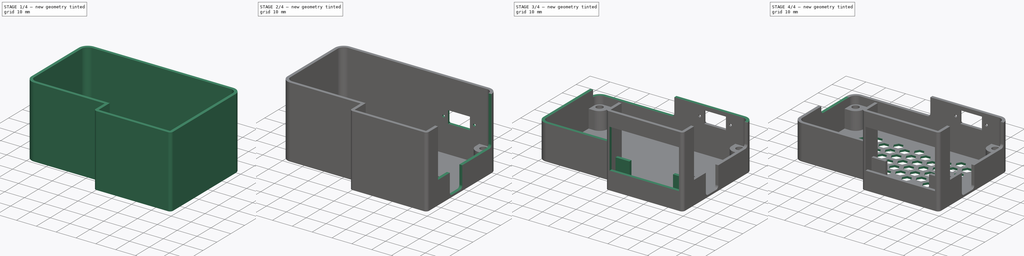
[diagram: build sequence overview — one tinted view per stage of 4, left to right]
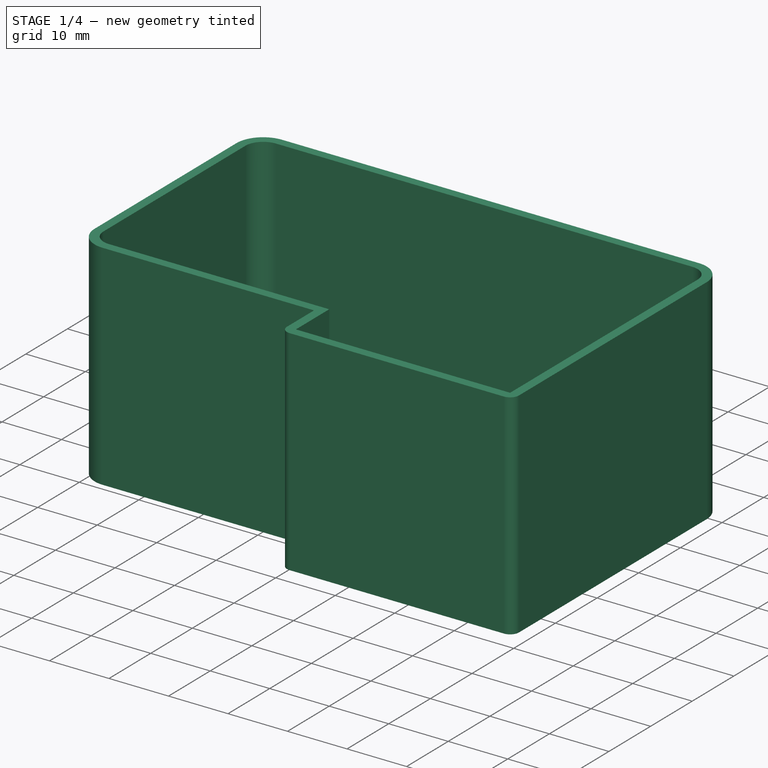
[diagram: stage 1 of 4 — iso view after this stage's code; geometry added in this stage tinted green]
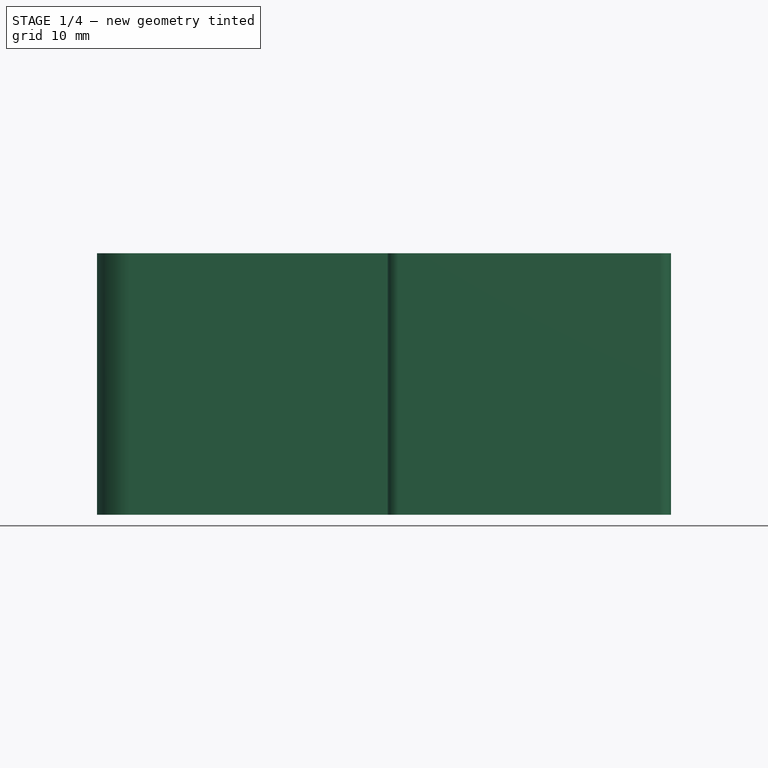
[diagram: stage 1 of 4 — front view after this stage's code; geometry added in this stage tinted green]
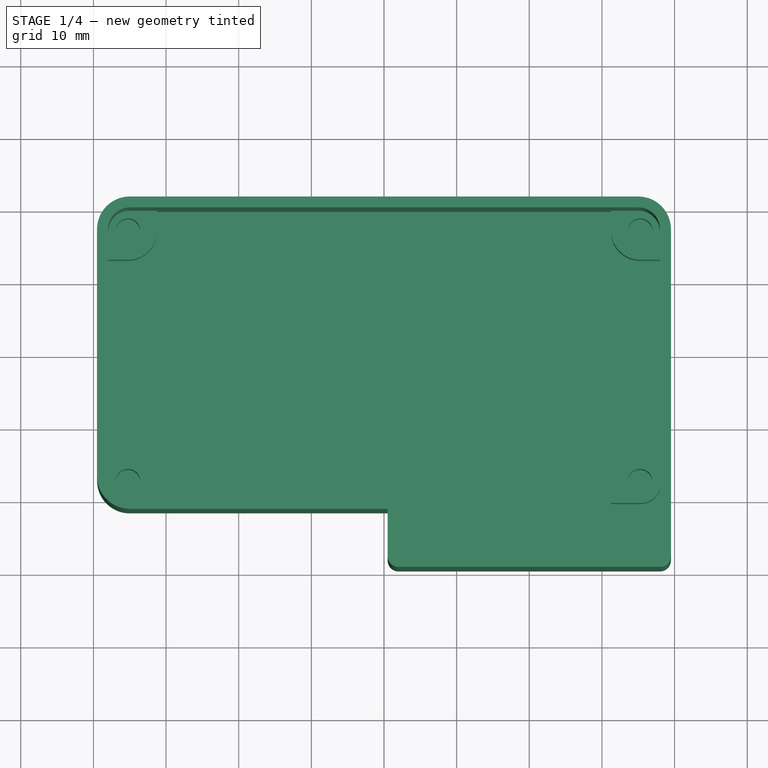
[diagram: stage 1 of 4 — top view after this stage's code; geometry added in this stage tinted green]
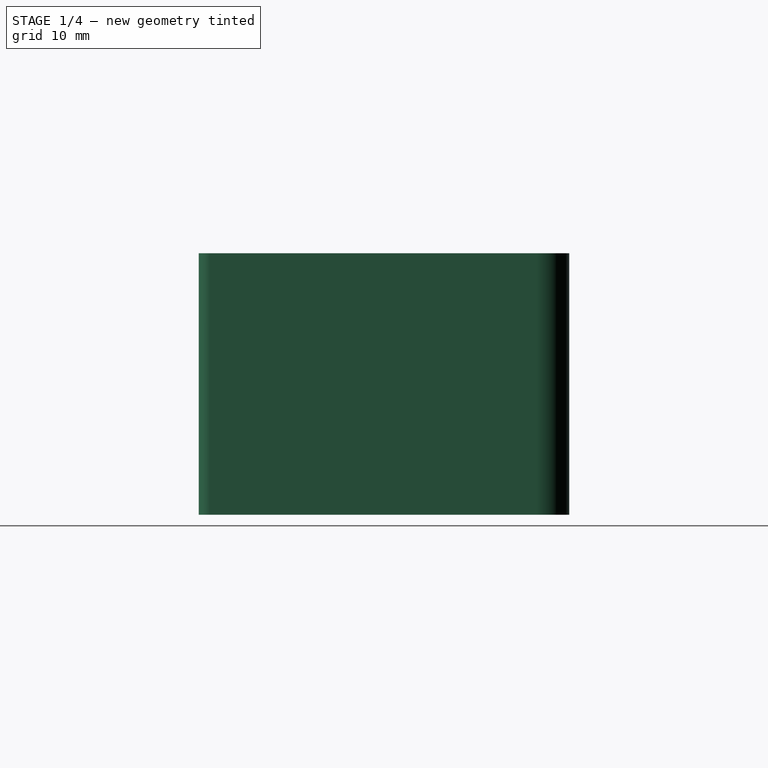
[diagram: stage 1 of 4 — right view after this stage's code; geometry added in this stage tinted green]
FCSTD DOCUMENT  (FreeCAD 0.20R29410 (Git))
Label: Pro-V1
License: All rights reserved
LicenseURL: http://en.wikipedia.org/wiki/All_rights_reserved
objects: Sketcher::SketchObject×12, PartDesign::Pocket×9, PartDesign::Pad×3, PartDesign::LinearPattern×2, PartDesign::MultiTransform×1, PartDesign::Body×1
note: 40 computed .brp shape members not serialized (recipe doc carries the construction recipe); baked Part::Feature solids carry a one-line shape summary decoded from their .brp

FEATURE [Sketcher::SketchObject] Sketch
  FullyConstrained = true
  MapMode = 5
  Support = -> [XY_Plane]
  sketch-geometry (21):
    g0: LineSegment StartX=-35 StartY=20 StartZ=0 EndX=35 EndY=20 EndZ=0
    g1: LineSegment StartX=38 StartY=17 StartZ=0 EndX=38 EndY=-17 EndZ=0
    g2: LineSegment StartX=35 StartY=-20 StartZ=0 EndX=-35 EndY=-20 EndZ=0
    g3: LineSegment StartX=-38 StartY=-17 StartZ=0 EndX=-38 EndY=17 EndZ=0
    g4: ArcOfCircle CenterX=-35 CenterY=17 CenterZ=0 NormalX=0 NormalY=0 NormalZ=1 AngleXU=0 Radius=3 StartAngle=1.5708 EndAngle=3.14159
    g5: ArcOfCircle CenterX=35 CenterY=17 CenterZ=0 NormalX=0 NormalY=0 NormalZ=1 AngleXU=0 Radius=3 StartAngle=0 EndAngle=1.5708
    g6: ArcOfCircle CenterX=35 CenterY=-17 CenterZ=0 NormalX=0 NormalY=0 NormalZ=1 AngleXU=0 Radius=3 StartAngle=4.71239 EndAngle=6.28319
    g7: ArcOfCircle CenterX=-35 CenterY=-17 CenterZ=0 NormalX=0 NormalY=0 NormalZ=1 AngleXU=0 Radius=3 StartAngle=3.14159 EndAngle=4.71239
    g8: LineSegment StartX=-35 StartY=21.5 StartZ=0 EndX=35 EndY=21.5 EndZ=0
    g9: LineSegment StartX=39.5 StartY=17 StartZ=0 EndX=39.5 EndY=-28 EndZ=0
    g10: LineSegment StartX=0.5 StartY=-21.5 StartZ=0 EndX=-35 EndY=-21.5 EndZ=0
    g11: LineSegment StartX=-39.5 StartY=-17 StartZ=0 EndX=-39.5 EndY=17 EndZ=0
    g12: ArcOfCircle CenterX=-35 CenterY=17 CenterZ=0 NormalX=0 NormalY=0 NormalZ=1 AngleXU=0 Radius=4.5 StartAngle=1.5708 EndAngle=3.14159
    g13: ArcOfCircle CenterX=-35 CenterY=-17 CenterZ=0 NormalX=0 NormalY=0 NormalZ=1 AngleXU=0 Radius=4.5 StartAngle=3.14159 EndAngle=4.71239
    g14: ArcOfCircle CenterX=35 CenterY=17 CenterZ=0 NormalX=0 NormalY=0 NormalZ=1 AngleXU=0 Radius=4.5 StartAngle=7e-16 EndAngle=1.5708
    g15: LineSegment StartX=38 StartY=-29.5 StartZ=0 EndX=2 EndY=-29.5 EndZ=0
    g16: LineSegment StartX=0.5 StartY=-28 StartZ=0 EndX=0.5 EndY=-21.5 EndZ=0
    g17: ArcOfCircle CenterX=2 CenterY=-28 CenterZ=0 NormalX=0 NormalY=0 NormalZ=1 AngleXU=0 Radius=1.5 StartAngle=3.14159 EndAngle=4.71239
    g18: GeomPoint X=0.5 Y=-29.5 Z=0
    g19: ArcOfCircle CenterX=38 CenterY=-28 CenterZ=0 NormalX=0 NormalY=0 NormalZ=1 AngleXU=0 Radius=1.5 StartAngle=4.71239 EndAngle=6.28319
    g20: GeomPoint X=39.5 Y=-29.5 Z=0
  constraints (48):
    c: Horizontal(g0)
    c: Horizontal(g2)
    c: Vertical(g1)
    c: Vertical(g3)
    c: Tangent(g3,g4) = 1.5708
    c: Tangent(g0,g4) = 1.5708
    c: Tangent(g0,g5) = 1.5708
    c: Tangent(g1,g5) = 1.5708
    c: Tangent(g2,g6) = 1.5708
    c: Tangent(g1,g6) = 1.5708
    c: Tangent(g3,g7) = 1.5708
    c: Tangent(g2,g7) = 1.5708
    c: Equal(g7,g4)
    c: Equal(g4,g5)
    c: Equal(g5,g6)
    c: Radius(g5) = 3
    c: Symmetric(g4,g6,g-1)
    c: DistanceY(g2,g0) = 40
    c: Horizontal(g8)
    c: Horizontal(g10)
    c: Vertical(g9)
    c: Tangent(g11,g12) = 1.5708
    c: Tangent(g8,g12) = 1.5708
    c: Tangent(g11,g13) = 1.5708
    c: Tangent(g10,g13) = 1.5708
    c: Tangent(g8,g14) = 1.5708
    c: Tangent(g9,g14) = 1.5708
    c: Coincident(g13,g7)
    c: DistanceX(g3,g1) = 76
    c: Symmetric(g11,g9,g-2)
    c: DistanceX(g11,g3) = 1.5
    c: Coincident(g12,g4)
    c: Horizontal(g15)
    c: Vertical(g16)
    c: Coincident(g10,g16)
    c: Vertical(g11)
    c: PointOnObject(g18,g16)
    c: PointOnObject(g18,g15)
    c: Tangent(g16,g17) = 1.5708
    c: Tangent(g15,g17) = 1.5708
    c: PointOnObject(g20,g9)
    c: PointOnObject(g20,g15)
    c: Tangent(g9,g19) = 1.5708
    c: Tangent(g15,g19) = 1.5708
    c: DistanceX(g18,g20) = 39
    c: DistanceY(g18,g10) = 8
    c: Equal(g17,g19)
    c: Radius(g17) = 1.5
FEATURE [PartDesign::Pad] Pad
  Direction = (0,0,1)
  Length = 36
  Length2 = 10
  Profile = -> Sketch
  ReferenceAxis = -> Sketch [N_Axis]
  Type = 0
FEATURE [Sketcher::SketchObject] Sketch001
  ExternalGeometry = -> [Pad]
  FullyConstrained = true
  MapMode = 5
  Placement = pos=(0,0,36) rot=(0,0,1;0rad)
  Support = -> [Pad]
  sketch-geometry (11):
    g0: LineSegment StartX=35 StartY=20 StartZ=0 EndX=-35 EndY=20 EndZ=0
    g1: LineSegment StartX=2 StartY=-20 StartZ=0 EndX=2 EndY=-28 EndZ=0
    g2: LineSegment StartX=2 StartY=-28 StartZ=0 EndX=38 EndY=-28 EndZ=0
    g3: LineSegment StartX=38 StartY=-28 StartZ=0 EndX=38 EndY=17 EndZ=0
    g4: ArcOfCircle CenterX=35 CenterY=17 CenterZ=0 NormalX=0 NormalY=0 NormalZ=1 AngleXU=0 Radius=3 StartAngle=3e-16 EndAngle=1.5708
    g5: LineSegment StartX=2 StartY=-20 StartZ=0 EndX=-35 EndY=-20 EndZ=0
    g6: LineSegment StartX=-38 StartY=-17 StartZ=0 EndX=-38 EndY=17 EndZ=0
    g7: ArcOfCircle CenterX=-35 CenterY=17 CenterZ=0 NormalX=0 NormalY=0 NormalZ=1 AngleXU=0 Radius=3 StartAngle=1.5708 EndAngle=3.14159
    g8: GeomPoint X=-38 Y=20 Z=0
    g9: ArcOfCircle CenterX=-35 CenterY=-17 CenterZ=0 NormalX=0 NormalY=0 NormalZ=1 AngleXU=0 Radius=3 StartAngle=3.14159 EndAngle=4.71239
    g10: GeomPoint X=-38 Y=-20 Z=0
  constraints (25):
    c: Horizontal(g0)
    c: Horizontal(g2)
    c: Vertical(g1)
    c: Vertical(g3)
    c: Tangent(g0,g4) = -1.5708
    c: Tangent(g3,g4) = -1.5708
    c: Coincident(g-5,g4)
    c: DistanceX(g3,g-5) = 1.5
    c: Coincident(g1,g5)
    c: Horizontal(g5)
    c: Vertical(g6)
    c: PointOnObject(g8,g6)
    c: PointOnObject(g8,g0)
    c: Tangent(g6,g7) = 1.5708
    c: Tangent(g0,g7) = -1.5708
    c: PointOnObject(g10,g6)
    c: PointOnObject(g10,g5)
    c: Tangent(g6,g9) = 1.5708
    c: Tangent(g5,g9) = 1.5708
    c: Vertical(g0,g-4)
    c: Symmetric(g0,g5,g-1)
    c: DistanceX(g-7,g6) = 1.5
    c: Coincident(g1,g2)
    c: Coincident(g1,g-6)
    c: Coincident(g2,g3)
FEATURE [Sketcher::SketchObject] Sketch005
  FullyConstrained = true
  MapMode = 5
  Placement = pos=(0,21.5,0) rot=(0,0.707107,0.707107;3.14159rad)
  sketch-geometry (5):
    g0: LineSegment StartX=-31 StartY=20.75 StartZ=0 EndX=-11 EndY=20.75 EndZ=0
    g1: LineSegment StartX=-11 StartY=20.75 StartZ=0 EndX=-11 EndY=15.25 EndZ=0
    g2: LineSegment StartX=-11 StartY=15.25 StartZ=0 EndX=-31 EndY=15.25 EndZ=0
    g3: LineSegment StartX=-31 StartY=15.25 StartZ=0 EndX=-31 EndY=20.75 EndZ=0
    g4: GeomPoint X=-21 Y=18 Z=0
  constraints (13):
    c: Coincident(g0,g1)
    c: Coincident(g1,g2)
    c: Coincident(g2,g3)
    c: Coincident(g3,g0)
    c: Horizontal(g2)
    c: Vertical(g1)
    c: Vertical(g3)
    c: DistanceY(g3,g3) = 5.5
    c: DistanceX(g0,g0) = 20
    c: Horizontal(g0)
    c: DistanceX(g1,g-1) = 11
    c: Symmetric(g1,g0,g4)
    c: DistanceY(g-1,g4) = 18
FEATURE [PartDesign::Pocket] Pocket
  BaseFeature = -> Pad
  Direction = (0,0,-1)
  Length = 35
  Length2 = 5
  Profile = -> Sketch001
  ReferenceAxis = -> Sketch001 [N_Axis]
  Type = 0
FEATURE [Sketcher::SketchObject] Sketch002
  ExternalGeometry = -> [Pocket]
  FullyConstrained = false
  MapMode = 5
  Placement = pos=(0,0,1) rot=(0,0,1;0rad)
  Support = -> [Pocket]
  sketch-geometry (28):
    g0: LineSegment StartX=-35.25 StartY=20.25 StartZ=0 EndX=-31.25 EndY=20.25 EndZ=0
    g1: LineSegment StartX=-31.25 StartY=20.25 StartZ=0 EndX=-31.25 EndY=17.25 EndZ=0
    g2: LineSegment StartX=-35.25 StartY=13.25 StartZ=0 EndX=-38.25 EndY=13.25 EndZ=0
    g3: LineSegment StartX=-38.25 StartY=13.25 StartZ=0 EndX=-38.25 EndY=17.25 EndZ=0
    g4: LineSegment StartX=35.25 StartY=20.25 StartZ=0 EndX=31.25 EndY=20.25 EndZ=0
    g5: LineSegment StartX=31.25 StartY=20.25 StartZ=0 EndX=31.25 EndY=17.25 EndZ=0
    g6: LineSegment StartX=35.25 StartY=13.25 StartZ=0 EndX=38.25 EndY=13.25 EndZ=0
    g7: LineSegment StartX=38.25 StartY=13.25 StartZ=0 EndX=38.25 EndY=17.25 EndZ=0
    g8: LineSegment StartX=-38 StartY=-13 StartZ=0 EndX=-35 EndY=-13 EndZ=0
    g9: LineSegment StartX=-31 StartY=-17 StartZ=0 EndX=-31 EndY=-20 EndZ=0
    g10: LineSegment StartX=-31 StartY=-20 StartZ=0 EndX=-35 EndY=-20 EndZ=0
    g11: LineSegment StartX=-38 StartY=-17 StartZ=0 EndX=-38 EndY=-13 EndZ=0
    g12: LineSegment StartX=35.25 StartY=-13.25 StartZ=0 EndX=38.25 EndY=-13.25 EndZ=0
    g13: LineSegment StartX=38.25 StartY=-13.25 StartZ=0 EndX=38.25 EndY=-17.25 EndZ=0
    g14: LineSegment StartX=35.25 StartY=-20.25 StartZ=0 EndX=31.25 EndY=-20.25 EndZ=0
    g15: LineSegment StartX=31.25 StartY=-20.25 StartZ=0 EndX=31.25 EndY=-17.25 EndZ=0
    g16: ArcOfCircle CenterX=-35.25 CenterY=17.25 CenterZ=0 NormalX=0 NormalY=0 NormalZ=1 AngleXU=0 Radius=3 StartAngle=1.5708 EndAngle=3.14159
    g17: ArcOfCircle CenterX=-35.25 CenterY=17.25 CenterZ=0 NormalX=0 NormalY=0 NormalZ=1 AngleXU=0 Radius=4 StartAngle=4.71239 EndAngle=6.28319
    g18: ArcOfCircle CenterX=35.25 CenterY=17.25 CenterZ=0 NormalX=0 NormalY=0 NormalZ=1 AngleXU=0 Radius=3 StartAngle=0 EndAngle=1.5708
    g19: ArcOfCircle CenterX=35.25 CenterY=17.25 CenterZ=0 NormalX=0 NormalY=0 NormalZ=1 AngleXU=0 Radius=4 StartAngle=3.14159 EndAngle=4.71239
    g20: ArcOfCircle CenterX=-35 CenterY=-17 CenterZ=0 NormalX=0 NormalY=0 NormalZ=1 AngleXU=0 Radius=4 StartAngle=0 EndAngle=1.5708
    g21: ArcOfCircle CenterX=-35 CenterY=-17 CenterZ=0 NormalX=0 NormalY=0 NormalZ=1 AngleXU=0 Radius=3 StartAngle=3.14159 EndAngle=4.71239
    g22: ArcOfCircle CenterX=35.25 CenterY=-17.25 CenterZ=0 NormalX=0 NormalY=0 NormalZ=1 AngleXU=0 Radius=4 StartAngle=1.5708 EndAngle=3.14159
    g23: ArcOfCircle CenterX=35.25 CenterY=-17.25 CenterZ=0 NormalX=0 NormalY=0 NormalZ=1 AngleXU=0 Radius=3 StartAngle=4.71239 EndAngle=6.28319
    g24: Circle CenterX=35.25 CenterY=17.25 CenterZ=0 NormalX=0 NormalY=0 NormalZ=1 AngleXU=0 Radius=1.7
    g25: Circle CenterX=-35.25 CenterY=17.25 CenterZ=0 NormalX=0 NormalY=0 NormalZ=1 AngleXU=0 Radius=1.7
    g26: Circle CenterX=-35.25 CenterY=-17.25 CenterZ=0 NormalX=0 NormalY=0 NormalZ=1 AngleXU=0 Radius=1.7
    g27: Circle CenterX=35.25 CenterY=-17.25 CenterZ=0 NormalX=0 NormalY=0 NormalZ=1 AngleXU=0 Radius=1.7
  constraints (65):
    c: Coincident(g0,g1)
    c: Coincident(g2,g3)
    c: Horizontal(g0)
    c: Horizontal(g2)
    c: Vertical(g1)
    c: Coincident(g4,g5)
    c: Coincident(g6,g7)
    c: Horizontal(g4)
    c: Horizontal(g6)
    c: Vertical(g5)
    c: Vertical(g7)
    c: Coincident(g9,g10)
    c: Coincident(g11,g8)
    c: Horizontal(g8)
    c: Horizontal(g10)
    c: Vertical(g9)
    c: Coincident(g12,g13)
    c: Coincident(g14,g15)
    c: Horizontal(g12)
    c: Horizontal(g14)
    c: Vertical(g13)
    c: Vertical(g15)
    c: Tangent(g3,g16) = 1.5708
    c: Tangent(g0,g16) = 1.5708
    c: Tangent(g2,g17) = 1.5708
    c: Tangent(g1,g17) = 1.5708
    c: Tangent(g4,g18) = -1.5708
    c: Tangent(g7,g18) = -1.5708
    c: Tangent(g5,g19) = -1.5708
    c: Tangent(g6,g19) = -1.5708
    c: Tangent(g8,g20) = 1.5708
    c: Tangent(g9,g20) = 1.5708
    c: Tangent(g11,g21) = 1.5708
    c: Tangent(g10,g21) = 1.5708
    c: Tangent(g15,g22) = 1.5708
    c: Tangent(g12,g22) = 1.5708
    c: Tangent(g14,g23) = 1.5708
    c: Tangent(g13,g23) = 1.5708
    c: Equal(g18,g23)
    c: Equal(g23,g21)
    c: Equal(g21,g16)
    c: Equal(g20,g22)
    c: Equal(g22,g19)
    c: Equal(g19,g17)
    c: Equal(g1,g5)
    c: Equal(g2,g6)
    c: Equal(g6,g12)
    c: Equal(g12,g15)
    c: Equal(g15,g9)
    c: Equal(g6,g5)
    c: Equal(g25,g24)
    c: Equal(g24,g27)
    c: Equal(g27,g26)
    c: Symmetric(g25,g27,g-1)
    c: Symmetric(g26,g24,g-1)
    c: DistanceX(g25,g24) = 70.5
    c: DistanceY(g26,g25) = 34.5
    c: Coincident(g22,g27)
    c: Radius(g22) = 4
    c: Coincident(g20,g21)
    c: Vertical(g3)
    c: Symmetric(g26,g25,g-1)
    c: Coincident(g24,g18)
    c: Coincident(g16,g25)
    c: Diameter(g26) = 3.4
FEATURE [PartDesign::Pad] Pad001
  BaseFeature = -> Pocket
  Direction = (0,0,1)
  Length = 9
  Length2 = 10
  Profile = -> Sketch002
  ReferenceAxis = -> Sketch002 [N_Axis]
  Type = 0
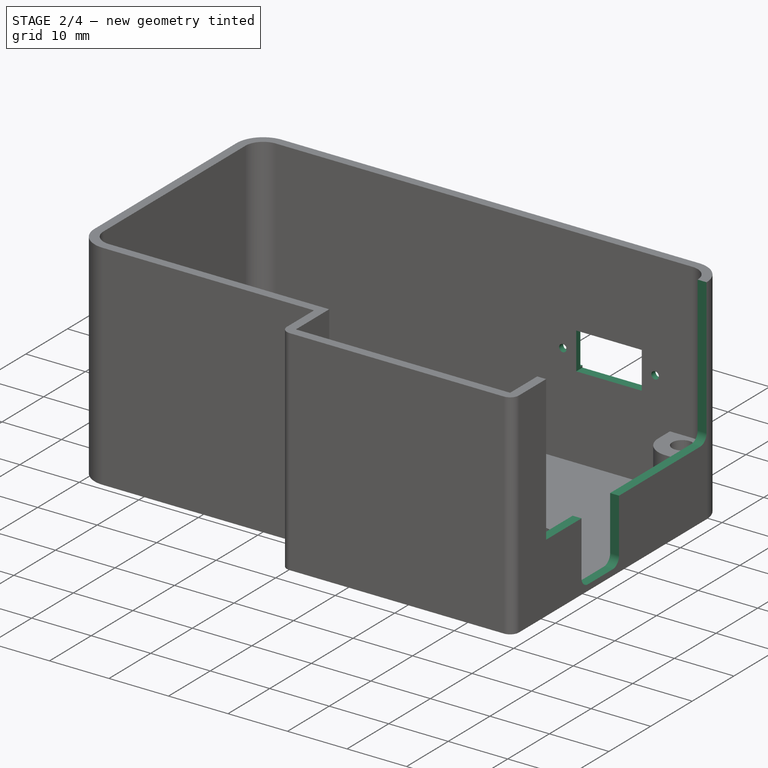
[diagram: stage 2 of 4 — iso view after this stage's code; geometry added in this stage tinted green]
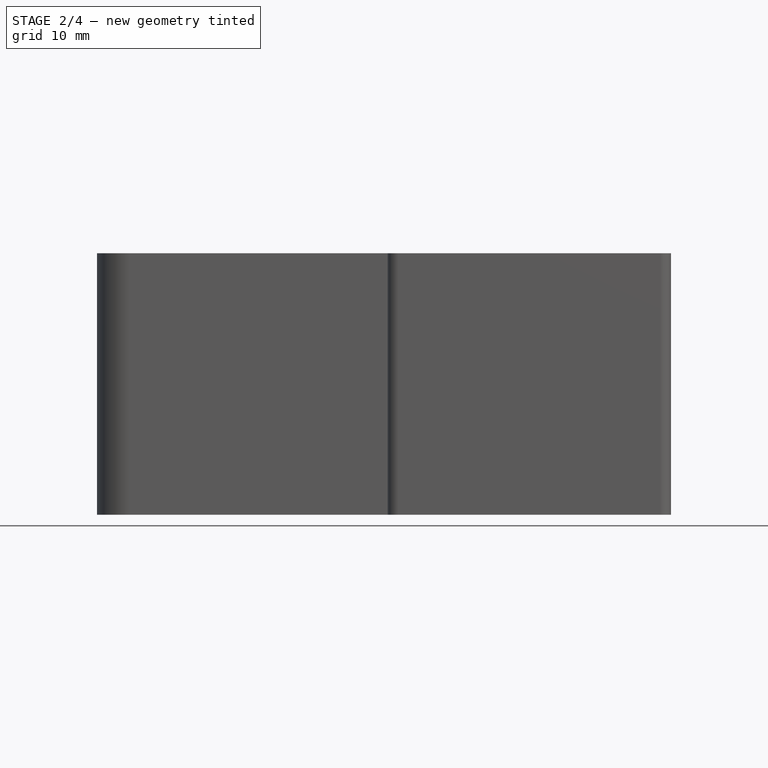
[diagram: stage 2 of 4 — front view after this stage's code; geometry added in this stage tinted green]
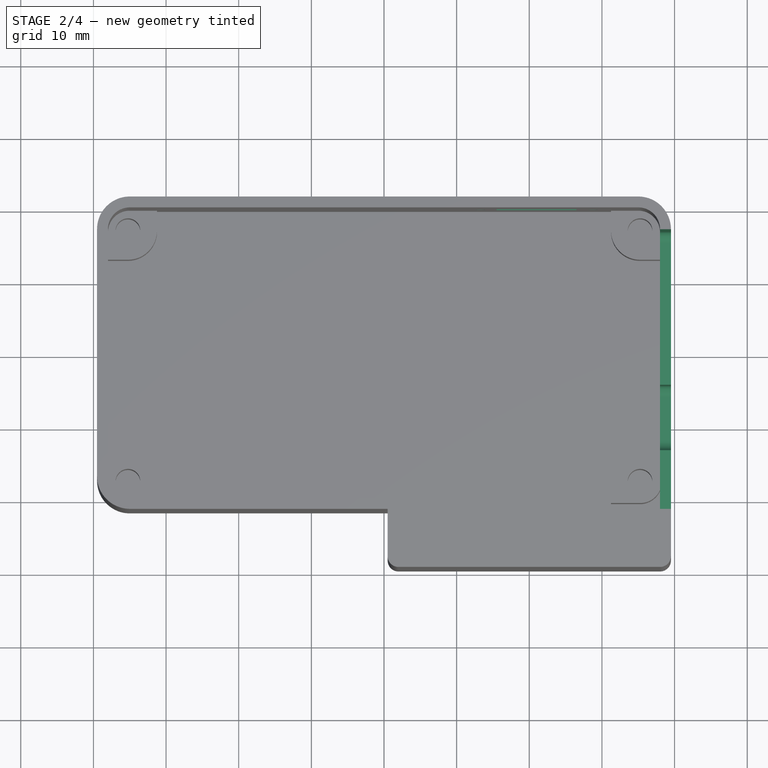
[diagram: stage 2 of 4 — top view after this stage's code; geometry added in this stage tinted green]
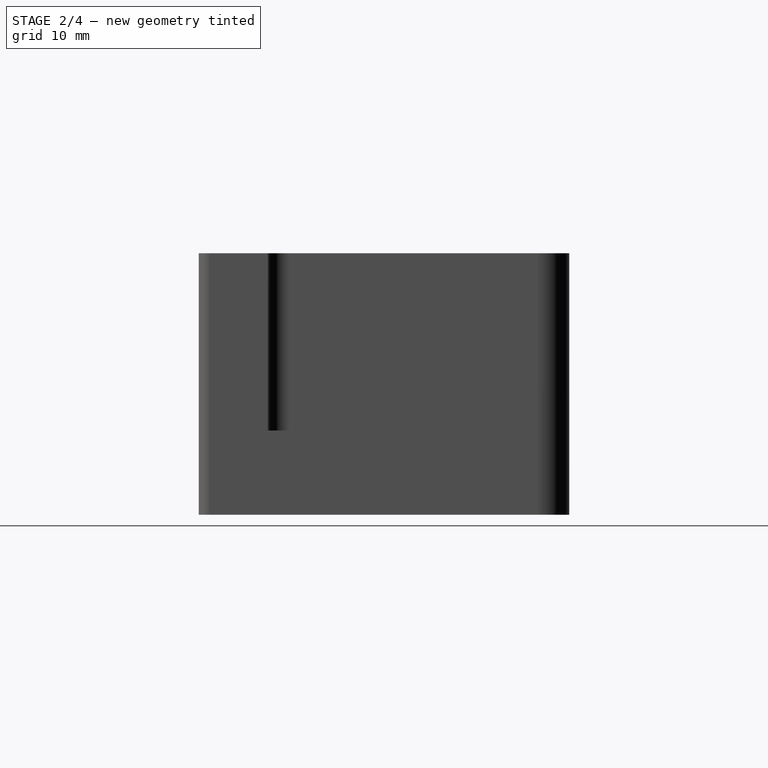
[diagram: stage 2 of 4 — right view after this stage's code; geometry added in this stage tinted green]
FEATURE [PartDesign::Pocket] Pocket001
  BaseFeature = -> Pad001
  Direction = (0,-1,2e-16)
  Length = 0.5
  Length2 = 5
  Profile = -> Sketch005
  ReferenceAxis = -> Sketch005 [N_Axis]
  Type = 0
FEATURE [Sketcher::SketchObject] Sketch006
  ExternalGeometry = -> [Pocket001]
  FullyConstrained = true
  MapMode = 5
  Placement = pos=(0,21.5,0) rot=(0,0.707107,0.707107;3.14159rad)
  sketch-geometry (7):
    g0: LineSegment StartX=-26.5 StartY=21.1 StartZ=0 EndX=-15.5 EndY=21.1 EndZ=0
    g1: LineSegment StartX=-15.5 StartY=21.1 StartZ=0 EndX=-15.5 EndY=14.9 EndZ=0
    g2: LineSegment StartX=-15.5 StartY=14.9 StartZ=0 EndX=-26.5 EndY=14.9 EndZ=0
    g3: LineSegment StartX=-26.5 StartY=14.9 StartZ=0 EndX=-26.5 EndY=21.1 EndZ=0
    g4: Circle CenterX=-13.25 CenterY=17.825 CenterZ=0 NormalX=0 NormalY=0 NormalZ=1 AngleXU=0 Radius=0.625
    g5: Circle CenterX=-28.75 CenterY=17.825 CenterZ=0 NormalX=0 NormalY=0 NormalZ=1 AngleXU=0 Radius=0.625
    g6: GeomPoint X=-21 Y=18 Z=0
  constraints (16):
    c: Coincident(g0,g1)
    c: Coincident(g1,g2)
    c: Coincident(g2,g3)
    c: Coincident(g3,g0)
    c: Horizontal(g0)
    c: Horizontal(g2)
    c: Vertical(g1)
    c: Vertical(g3)
    c: DistanceX(g2,g2) = 11
    c: DistanceY(g1,g1) = 6.2
    c: Equal(g5,g4)
    c: Diameter(g4) = 1.25
    c: Symmetric(g-3,g-4,g6)
    c: Symmetric(g0,g1,g6)
    c: Symmetric(g2,g-3,g5)
    c: Symmetric(g1,g-3,g4)
FEATURE [PartDesign::Pocket] Pocket002
  BaseFeature = -> Pocket001
  Direction = (0,-1,2e-16)
  Length = 5
  Length2 = 5
  Profile = -> Sketch006
  ReferenceAxis = -> Sketch006 [N_Axis]
  Type = 0
FEATURE [Sketcher::SketchObject] Sketch007
  ExternalGeometry = -> [Pocket002]
  FullyConstrained = true
  MapMode = 5
  Placement = pos=(39.5,0,0) rot=(0.57735,0.57735,0.57735;2.0944rad)
  sketch-geometry (11):
    g0: LineSegment StartX=-11.5 StartY=1 StartZ=0 EndX=-5.5 EndY=1 EndZ=0
    g1: LineSegment StartX=-4 StartY=2.5 StartZ=0 EndX=-4 EndY=11.6 EndZ=0
    g2: ArcOfCircle CenterX=-11.5 CenterY=2.5 CenterZ=0 NormalX=0 NormalY=0 NormalZ=1 AngleXU=0 Radius=1.5 StartAngle=3.14159 EndAngle=4.71239
    g3: ArcOfCircle CenterX=-5.5 CenterY=2.5 CenterZ=0 NormalX=0 NormalY=0 NormalZ=1 AngleXU=0 Radius=1.5 StartAngle=4.71239 EndAngle=6.28319
    g4: LineSegment StartX=-4 StartY=11.6 StartZ=0 EndX=15.5 EndY=11.6 EndZ=0
    g5: LineSegment StartX=17 StartY=13.1 StartZ=0 EndX=17 EndY=36 EndZ=0
    g6: LineSegment StartX=17 StartY=36 StartZ=0 EndX=-21.5 EndY=36 EndZ=0
    g7: ArcOfCircle CenterX=15.5 CenterY=13.1 CenterZ=0 NormalX=0 NormalY=0 NormalZ=1 AngleXU=0 Radius=1.5 StartAngle=4.71239 EndAngle=6.28319
    g8: LineSegment StartX=-13 StartY=2.5 StartZ=0 EndX=-13 EndY=11.6 EndZ=0
    g9: LineSegment StartX=-13 StartY=11.6 StartZ=0 EndX=-21.5 EndY=11.6 EndZ=0
    g10: LineSegment StartX=-21.5 StartY=11.6 StartZ=0 EndX=-21.5 EndY=36 EndZ=0
  constraints (28):
    c: Horizontal(g0)
    c: Tangent(g0,g2) = -1.5708
    c: Tangent(g0,g3) = -1.5708
    c: Tangent(g1,g3) = -1.5708
    c: Equal(g3,g2)
    c: Vertical(g1)
    c: DistanceX(g2,g1) = 9
    c: Horizontal(g2,g2)
    c: Coincident(g1,g4)
    c: Horizontal(g4)
    c: Coincident(g5,g6)
    c: Tangent(g4,g7) = -1.5708
    c: Tangent(g5,g7) = -1.5708
    c: Vertical(g5)
    c: Equal(g3,g7)
    c: Radius(g7) = 1.5
    c: Tangent(g2,g8) = 1.5708
    c: Coincident(g8,g9)
    c: Coincident(g9,g10)
    c: Horizontal(g9)
    c: Horizontal(g1,g8)
    c: DistanceY(g-1,g0) = 1
    c: Vertical(g10)
    c: Coincident(g-3,g5)
    c: DistanceX(g-8,g8) = 8.5
    c: Coincident(g10,g6)
    c: Coincident(g6,g-8)
    c: DistanceY(g-9,g4) = 1.6
FEATURE [PartDesign::Pocket] Pocket003
  BaseFeature = -> Pocket002
  Direction = (-1,0,0)
  Length = 1.5
  Length2 = 5
  Profile = -> Sketch007
  ReferenceAxis = -> Sketch007 [N_Axis]
  Type = 0
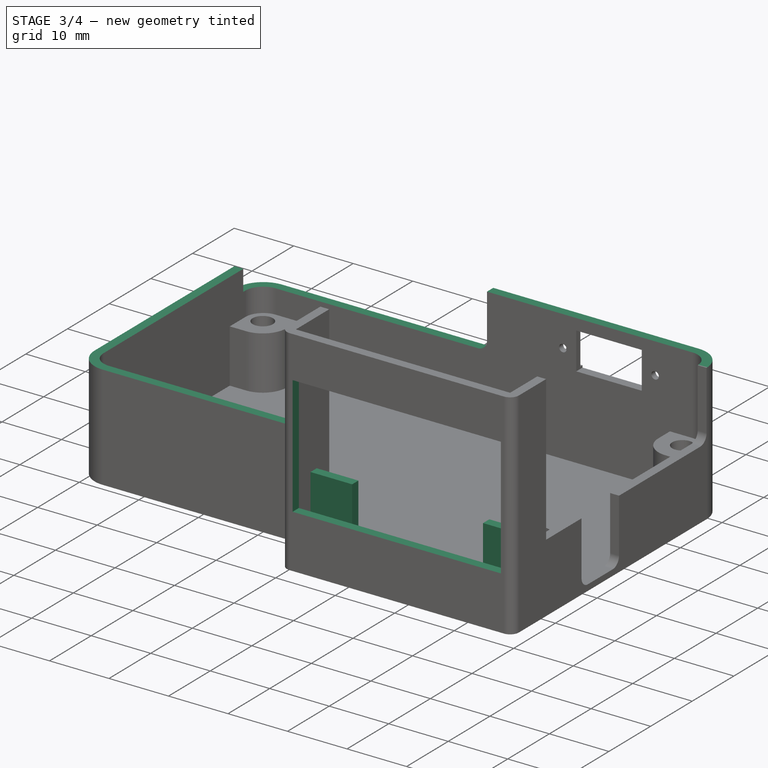
[diagram: stage 3 of 4 — iso view after this stage's code; geometry added in this stage tinted green]
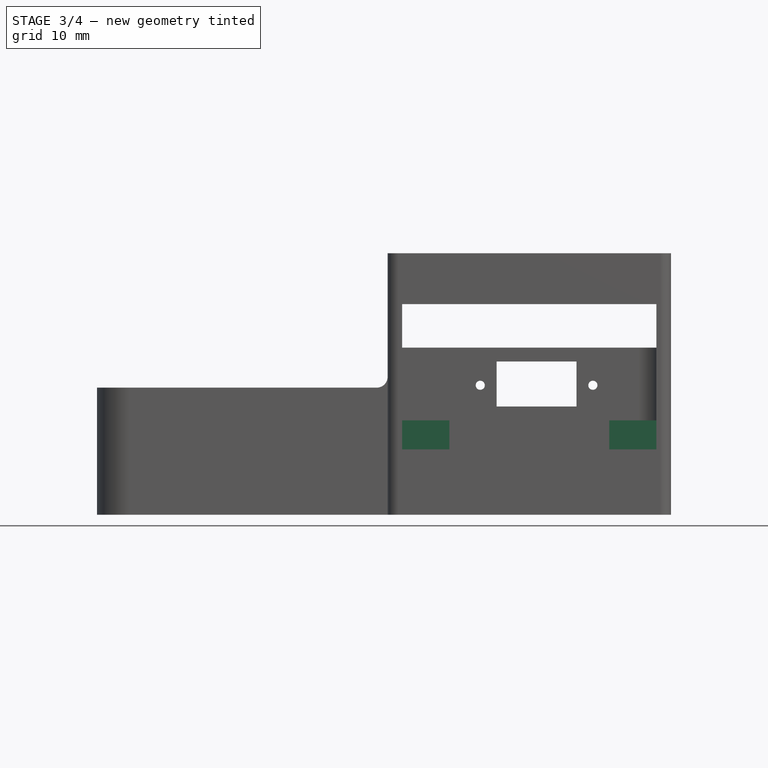
[diagram: stage 3 of 4 — front view after this stage's code; geometry added in this stage tinted green]
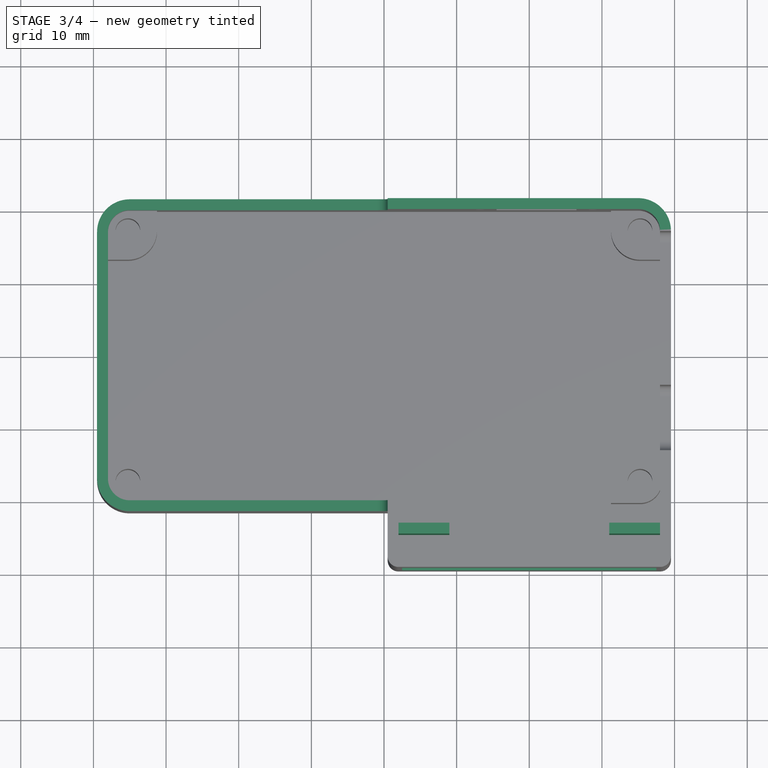
[diagram: stage 3 of 4 — top view after this stage's code; geometry added in this stage tinted green]
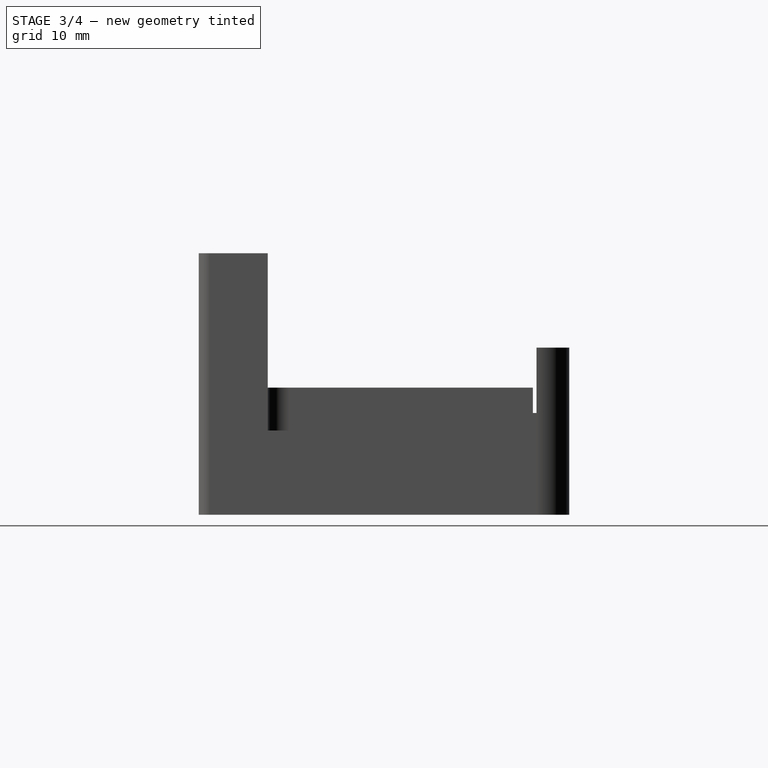
[diagram: stage 3 of 4 — right view after this stage's code; geometry added in this stage tinted green]
FEATURE [Sketcher::SketchObject] Sketch009
  ExternalGeometry = -> [Pocket003]
  FullyConstrained = true
  MapMode = 5
  Placement = pos=(0,21.5,0) rot=(0,0.707107,0.707107;3.14159rad)
  sketch-geometry (8):
    g0: LineSegment StartX=-39.5 StartY=36 StartZ=0 EndX=39.5 EndY=36 EndZ=0
    g1: LineSegment StartX=-0.5 StartY=23 StartZ=0 EndX=-39.5 EndY=23 EndZ=0
    g2: LineSegment StartX=-39.5 StartY=23 StartZ=0 EndX=-39.5 EndY=36 EndZ=0
    g3: LineSegment StartX=-0.5 StartY=23 StartZ=0 EndX=-0.5 EndY=15.5 EndZ=0
    g4: LineSegment StartX=1 StartY=14 StartZ=0 EndX=39.5 EndY=14 EndZ=0
    g5: LineSegment StartX=39.5 StartY=14 StartZ=0 EndX=39.5 EndY=36 EndZ=0
    g6: ArcOfCircle CenterX=1 CenterY=15.5 CenterZ=0 NormalX=0 NormalY=0 NormalZ=1 AngleXU=0 Radius=1.5 StartAngle=3.14159 EndAngle=4.71239
    g7: GeomPoint X=-0.5 Y=14 Z=0
  constraints (21):
    c: Horizontal(g1)
    c: Vertical(g2)
    c: Coincident(g1,g2)
    c: Coincident(g0,g-5)
    c: Coincident(g4,g5)
    c: Horizontal(g4)
    c: Vertical(g3)
    c: Vertical(g5)
    c: DistanceX(g7,g4) = 40
    c: Coincident(g1,g3)
    c: Coincident(g5,g0)
    c: PointOnObject(g7,g3)
    c: PointOnObject(g7,g4)
    c: Tangent(g3,g6) = -1.5708
    c: Tangent(g4,g6) = -1.5708
    c: Radius(g6) = 1.5
    c: Horizontal(g0)
    c: Coincident(g0,g2)
    c: Vertical(g0,g-4)
    c: DistanceY(g2,g2) = 13
    c: DistanceY(g-6,g4) = 4
FEATURE [PartDesign::Pocket] Pocket004
  BaseFeature = -> Pocket003
  Direction = (0,-1,2e-16)
  Length = 5
  Length2 = 5
  Profile = -> Sketch009
  ReferenceAxis = -> Sketch009 [N_Axis]
  Type = 0
FEATURE [Sketcher::SketchObject] Sketch010
  ExternalGeometry = -> [Pocket004]
  FullyConstrained = true
  MapMode = 5
  Placement = pos=(0,-21.5,0) rot=(1,0,0;1.5708rad)
  Support = -> [Pocket004]
  sketch-geometry (6):
    g0: LineSegment StartX=-39.5 StartY=36 StartZ=0 EndX=0.5 EndY=36 EndZ=0
    g1: LineSegment StartX=0.5 StartY=36 StartZ=0 EndX=0.5 EndY=19 EndZ=0
    g2: LineSegment StartX=-1 StartY=17.5 StartZ=0 EndX=-39.5 EndY=17.5 EndZ=0
    g3: LineSegment StartX=-39.5 StartY=17.5 StartZ=0 EndX=-39.5 EndY=36 EndZ=0
    g4: ArcOfCircle CenterX=-1 CenterY=19 CenterZ=0 NormalX=0 NormalY=0 NormalZ=1 AngleXU=0 Radius=1.5 StartAngle=4.71239 EndAngle=6.28319
    g5: GeomPoint X=0.5 Y=17.5 Z=0
  constraints (14):
    c: Coincident(g0,g1)
    c: Coincident(g3,g0)
    c: Horizontal(g2)
    c: Vertical(g1)
    c: Coincident(g0,g-4)
    c: Coincident(g0,g-3)
    c: PointOnObject(g5,g1)
    c: PointOnObject(g5,g2)
    c: Tangent(g1,g4) = 1.5708
    c: Tangent(g2,g4) = 1.5708
    c: Radius(g4) = 1.5
    c: Coincident(g2,g3)
    c: Vertical(g3)
    c: DistanceY(g-5,g2) = 3.5
FEATURE [PartDesign::Pocket] Pocket005
  BaseFeature = -> Pocket004
  Direction = (0,1,-2e-16)
  Length = 39
  Length2 = 5
  Profile = -> Sketch010
  ReferenceAxis = -> Sketch010 [N_Axis]
  Type = 0
FEATURE [Sketcher::SketchObject] Sketch011
  ExternalGeometry = -> [Pocket005]
  FullyConstrained = true
  MapMode = 5
  Placement = pos=(0,-29.5,0) rot=(1,0,0;1.5708rad)
  Support = -> [Pocket005]
  sketch-geometry (5):
    g0: LineSegment StartX=2.5 StartY=29 StartZ=0 EndX=37.5 EndY=29 EndZ=0
    g1: LineSegment StartX=37.5 StartY=29 StartZ=0 EndX=37.5 EndY=9 EndZ=0
    g2: LineSegment StartX=37.5 StartY=9 StartZ=0 EndX=2.5 EndY=9 EndZ=0
    g3: LineSegment StartX=2.5 StartY=9 StartZ=0 EndX=2.5 EndY=29 EndZ=0
    g4: LineSegment StartX=20 StartY=36 StartZ=0 EndX=20 EndY=0 EndZ=0
  constraints (14):
    c: Coincident(g0,g1)
    c: Coincident(g1,g2)
    c: Coincident(g2,g3)
    c: Coincident(g3,g0)
    c: Horizontal(g2)
    c: Vertical(g1)
    c: Vertical(g3)
    c: DistanceY(g1,g1) = 20
    c: DistanceX(g0,g0) = 35
    c: DistanceY(g-3,g2) = 8
    c: Vertical(g4)
    c: Symmetric(g-4,g-4,g4)
    c: PointOnObject(g4,g-1)
    c: Symmetric(g0,g0,g4)
FEATURE [PartDesign::Pocket] Pocket006
  BaseFeature = -> Pocket005
  Direction = (0,1,-2e-16)
  Length = 1.5
  Length2 = 5
  Profile = -> Sketch011
  ReferenceAxis = -> Sketch011 [N_Axis]
  Type = 0
FEATURE [Sketcher::SketchObject] Sketch012
  ExternalGeometry = -> [Pocket006]
  FullyConstrained = true
  MapMode = 5
  Placement = pos=(0,0,1) rot=(0,0,1;0rad)
  Support = -> [Pocket006]
  sketch-geometry (8):
    g0: LineSegment StartX=31 StartY=-23 StartZ=0 EndX=38 EndY=-23 EndZ=0
    g1: LineSegment StartX=38 StartY=-23 StartZ=0 EndX=38 EndY=-24.5 EndZ=0
    g2: LineSegment StartX=38 StartY=-24.5 StartZ=0 EndX=31 EndY=-24.5 EndZ=0
    g3: LineSegment StartX=31 StartY=-24.5 StartZ=0 EndX=31 EndY=-23 EndZ=0
    g4: LineSegment StartX=9 StartY=-23 StartZ=0 EndX=2 EndY=-23 EndZ=0
    g5: LineSegment StartX=2 StartY=-23 StartZ=0 EndX=2 EndY=-24.5 EndZ=0
    g6: LineSegment StartX=2 StartY=-24.5 StartZ=0 EndX=9 EndY=-24.5 EndZ=0
    g7: LineSegment StartX=9 StartY=-24.5 StartZ=0 EndX=9 EndY=-23 EndZ=0
  constraints (24):
    c: Coincident(g0,g1)
    c: Coincident(g1,g2)
    c: Coincident(g2,g3)
    c: Coincident(g3,g0)
    c: Horizontal(g0)
    c: Horizontal(g2)
    c: Vertical(g1)
    c: Vertical(g3)
    c: Coincident(g4,g5)
    c: Coincident(g5,g6)
    c: Coincident(g6,g7)
    c: Coincident(g7,g4)
    c: Horizontal(g4)
    c: Horizontal(g6)
    c: Vertical(g5)
    c: Vertical(g7)
    c: DistanceX(g4,g4) = 7
    c: DistanceY(g7,g7) = 1.5
    c: Equal(g7,g3)
    c: Equal(g4,g0)
    c: Horizontal(g2,g6)
    c: DistanceY(g-3,g6) = 3.5
    c: PointOnObject(g0,g-5)
    c: PointOnObject(g4,g-4)
FEATURE [PartDesign::Pad] Pad002
  BaseFeature = -> Pocket006
  Direction = (0,0,1)
  Length = 12
  Length2 = 10
  Profile = -> Sketch012
  ReferenceAxis = -> Sketch012 [N_Axis]
  Type = 0
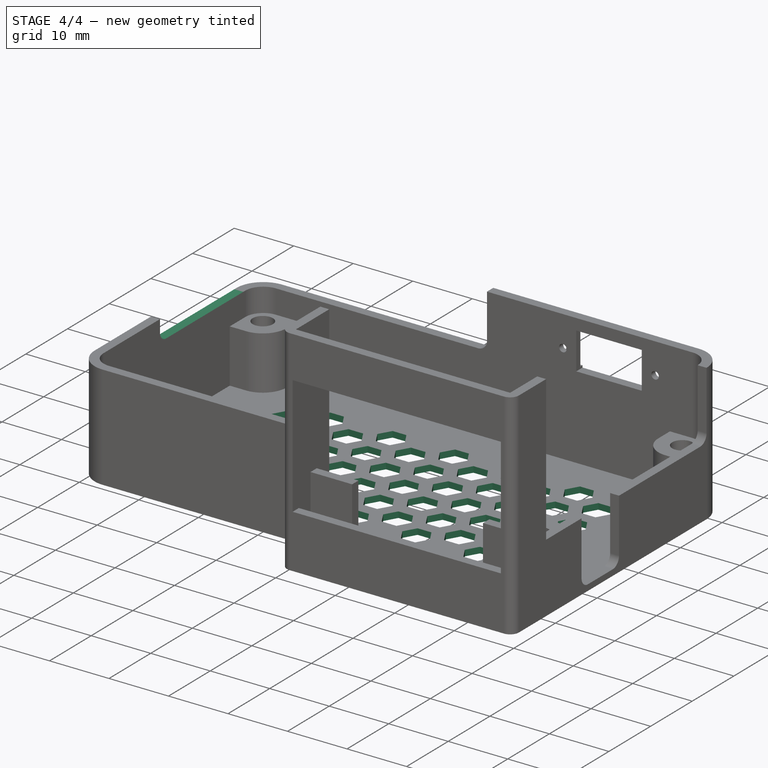
[diagram: stage 4 of 4 — iso view after this stage's code; geometry added in this stage tinted green]
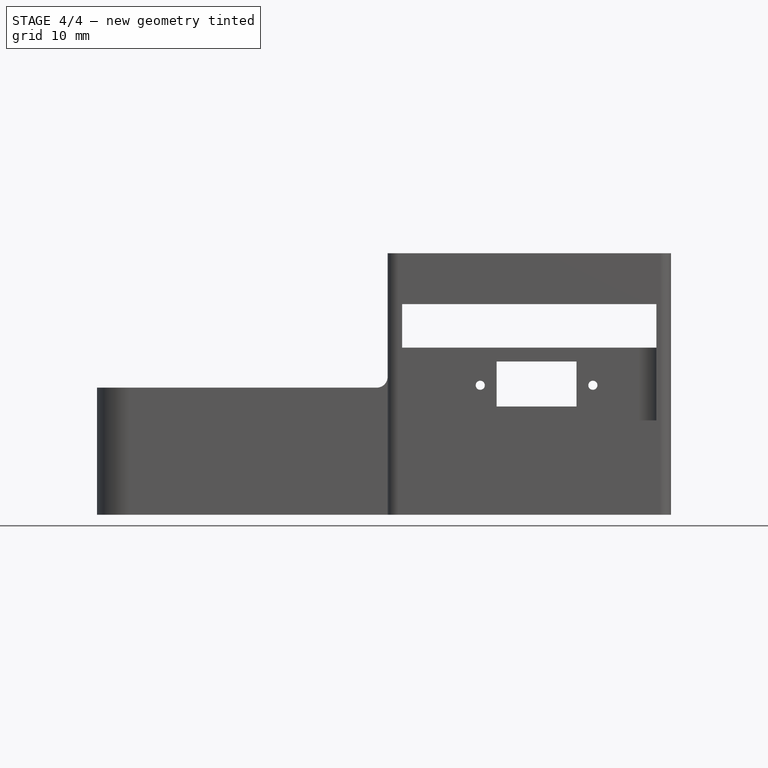
[diagram: stage 4 of 4 — front view after this stage's code; geometry added in this stage tinted green]
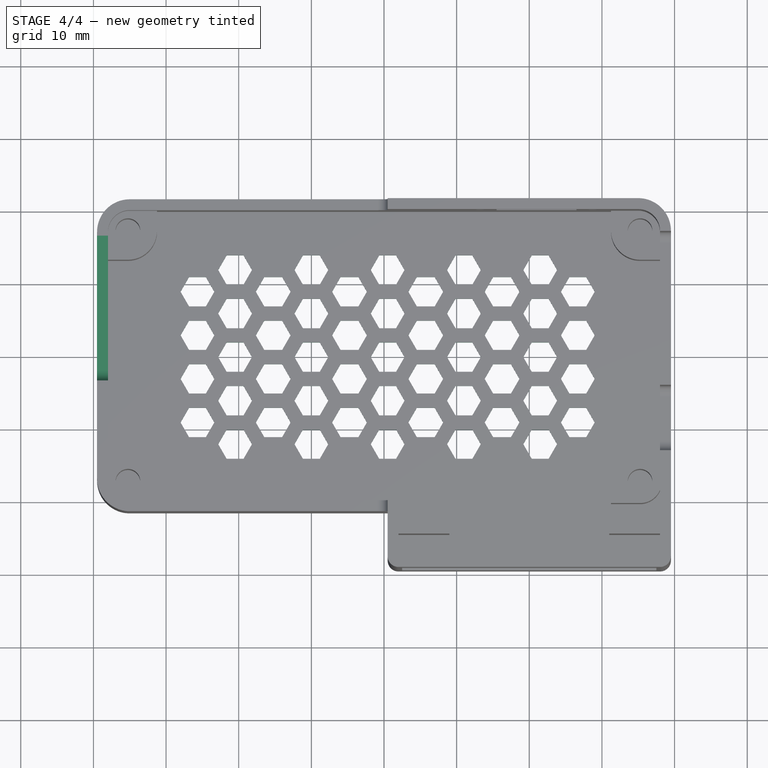
[diagram: stage 4 of 4 — top view after this stage's code; geometry added in this stage tinted green]
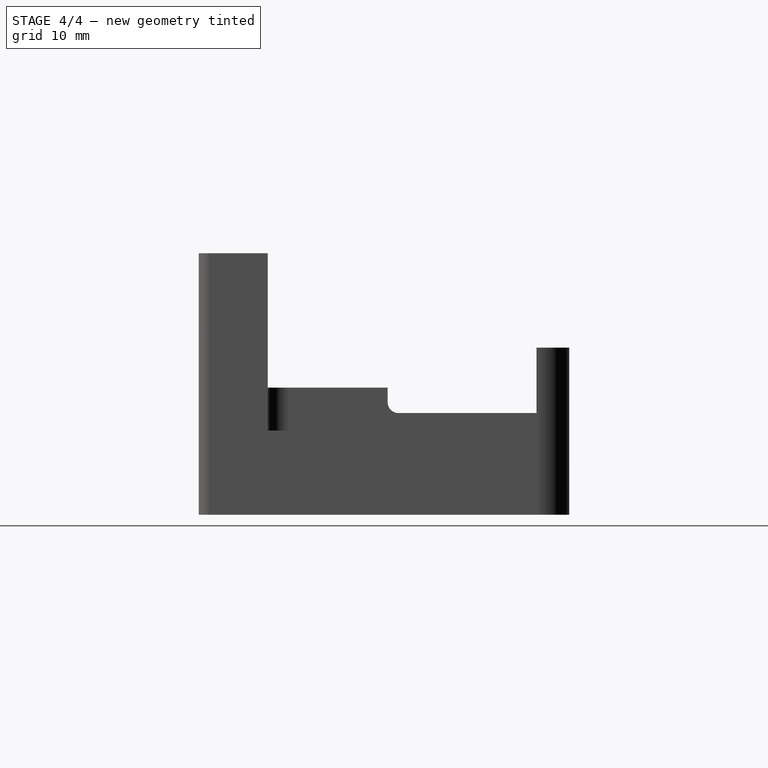
[diagram: stage 4 of 4 — right view after this stage's code; geometry added in this stage tinted green]
FEATURE [Sketcher::SketchObject] Sketch014
  FullyConstrained = false
  MapMode = 5
  Placement = pos=(-39.5,0,0) rot=(0.57735,-0.57735,-0.57735;2.0944rad)
  sketch-geometry (6):
    g0: LineSegment StartX=3.5 StartY=17.5 StartZ=0 EndX=-16.5 EndY=17.5 EndZ=0
    g1: LineSegment StartX=-16.5 StartY=17.5 StartZ=0 EndX=-16.5 EndY=14 EndZ=0
    g2: LineSegment StartX=-16.5 StartY=14 StartZ=0 EndX=2 EndY=14 EndZ=0
    g3: LineSegment StartX=3.5 StartY=15.5 StartZ=0 EndX=3.5 EndY=17.5 EndZ=0
    g4: ArcOfCircle CenterX=2 CenterY=15.5 CenterZ=0 NormalX=0 NormalY=0 NormalZ=1 AngleXU=0 Radius=1.5 StartAngle=4.71239 EndAngle=6.28319
    g5: GeomPoint X=3.5 Y=14 Z=0
  constraints (12):
    c: Coincident(g0,g1)
    c: Coincident(g1,g2)
    c: Coincident(g3,g0)
    c: Horizontal(g0)
    c: Horizontal(g2)
    c: Vertical(g3)
    c: PointOnObject(g5,g2)
    c: PointOnObject(g5,g3)
    c: Tangent(g2,g4) = -1.5708
    c: Tangent(g3,g4) = -1.5708
    c: Radius(g4) = 1.5
    c: DistanceX(g0,g0) = 20
FEATURE [PartDesign::Pocket] Pocket008
  BaseFeature = -> Pad002
  Direction = (1,0,0)
  Length = 5
  Length2 = 5
  Profile = -> Sketch014
  ReferenceAxis = -> Sketch014 [N_Axis]
  Type = 0
FEATURE [Sketcher::SketchObject] Sketch013
  FullyConstrained = true
  MapMode = 5
  Placement = pos=(0,0,1) rot=(0,0,1;0rad)
  Support = -> [Pocket008]
  sketch-geometry (37):
    g0: LineSegment StartX=-28 StartY=-9 StartZ=0 EndX=-26.8397 EndY=-11.0096 EndZ=0
    g1: LineSegment StartX=-26.8397 StartY=-11.0096 StartZ=0 EndX=-24.5192 EndY=-11.0096 EndZ=0
    g2: LineSegment StartX=-24.5192 StartY=-11.0096 StartZ=0 EndX=-23.359 EndY=-9 EndZ=0
    g3: LineSegment StartX=-23.359 StartY=-9 StartZ=0 EndX=-24.5192 EndY=-6.99038 EndZ=0
    g4: LineSegment StartX=-24.5192 StartY=-6.99038 StartZ=0 EndX=-26.8397 EndY=-6.99038 EndZ=0
    g5: LineSegment StartX=-26.8397 StartY=-6.99038 StartZ=0 EndX=-28 EndY=-9 EndZ=0
    g6: Circle CenterX=-25.6795 CenterY=-9 CenterZ=0 NormalX=0 NormalY=0 NormalZ=1 AngleXU=0 Radius=2.32051
    g7: LineSegment StartX=-18.1795 StartY=-6.00962 StartZ=0 EndX=-19.3397 EndY=-4 EndZ=0
    g8: LineSegment StartX=-19.3397 StartY=-4 StartZ=0 EndX=-21.6603 EndY=-4 EndZ=0
    g9: LineSegment StartX=-21.6603 StartY=-4 StartZ=0 EndX=-22.8205 EndY=-6.00962 EndZ=0
    g10: LineSegment StartX=-22.8205 StartY=-6.00962 StartZ=0 EndX=-21.6603 EndY=-8.01924 EndZ=0
    g11: LineSegment StartX=-21.6603 StartY=-8.01924 StartZ=0 EndX=-19.3397 EndY=-8.01924 EndZ=0
    g12: LineSegment StartX=-19.3397 StartY=-8.01924 StartZ=0 EndX=-18.1795 EndY=-6.00962 EndZ=0
    g13: Circle CenterX=-20.5 CenterY=-6.00962 CenterZ=0 NormalX=0 NormalY=0 NormalZ=1 AngleXU=0 Radius=2.32051
    g14: LineSegment StartX=-16.4808 StartY=-6.99038 StartZ=0 EndX=-17.641 EndY=-9 EndZ=0
    g15: LineSegment StartX=-17.641 StartY=-9 StartZ=0 EndX=-16.4808 EndY=-11.0096 EndZ=0
    g16: LineSegment StartX=-16.4808 StartY=-11.0096 StartZ=0 EndX=-14.1603 EndY=-11.0096 EndZ=0
    g17: LineSegment StartX=-14.1603 StartY=-11.0096 StartZ=0 EndX=-13 EndY=-9 EndZ=0
    g18: LineSegment StartX=-13 StartY=-9 StartZ=0 EndX=-14.1603 EndY=-6.99038 EndZ=0
    g19: LineSegment StartX=-14.1603 StartY=-6.99038 StartZ=0 EndX=-16.4808 EndY=-6.99038 EndZ=0
    g20: Circle CenterX=-15.3205 CenterY=-9 CenterZ=0 NormalX=0 NormalY=0 NormalZ=1 AngleXU=0 Radius=2.32051
    g21: LineSegment StartX=-22.8205 StartY=-11.9904 StartZ=0 EndX=-21.6603 EndY=-14 EndZ=0
    g22: LineSegment StartX=-21.6603 StartY=-14 StartZ=0 EndX=-19.3397 EndY=-14 EndZ=0
    g23: LineSegment StartX=-19.3397 StartY=-14 StartZ=0 EndX=-18.1795 EndY=-11.9904 EndZ=0
    g24: LineSegment StartX=-18.1795 StartY=-11.9904 StartZ=0 EndX=-19.3397 EndY=-9.98076 EndZ=0
    g25: LineSegment StartX=-19.3397 StartY=-9.98076 StartZ=0 EndX=-21.6603 EndY=-9.98076 EndZ=0
    g26: LineSegment StartX=-21.6603 StartY=-9.98076 StartZ=0 EndX=-22.8205 EndY=-11.9904 EndZ=0
    g27: Circle CenterX=-20.5 CenterY=-11.9904 CenterZ=0 NormalX=0 NormalY=0 NormalZ=1 AngleXU=0 Radius=2.32051
    g28: LineSegment StartX=-25.6795 StartY=-9 StartZ=0 EndX=-20.5 EndY=-6.00962 EndZ=0
    g29: LineSegment StartX=-20.5 StartY=-6.00962 StartZ=0 EndX=-15.3205 EndY=-9 EndZ=0
    g30: LineSegment StartX=-15.3205 StartY=-9 StartZ=0 EndX=-20.5 EndY=-11.9904 EndZ=0
    g31: LineSegment StartX=-20.5 StartY=-11.9904 StartZ=0 EndX=-25.6795 EndY=-9 EndZ=0
    g32: GeomPoint X=-20.5 Y=-9 Z=0
    g33: LineSegment StartX=-28 StartY=-4 StartZ=0 EndX=-13 EndY=-4 EndZ=0
    g34: LineSegment StartX=-13 StartY=-4 StartZ=0 EndX=-13 EndY=-14 EndZ=0
    g35: LineSegment StartX=-13 StartY=-14 StartZ=0 EndX=-28 EndY=-14 EndZ=0
    g36: LineSegment StartX=-28 StartY=-14 StartZ=0 EndX=-28 EndY=-4 EndZ=0
  constraints (89):
    c: Coincident(g0,g1)
    c: Coincident(g1,g2)
    c: Coincident(g2,g3)
    c: Coincident(g3,g4)
    c: Coincident(g4,g5)
    c: Coincident(g5,g0)
    c: Equal(g0, g1-g5) x5
    c: PointOnObject(g0,g6)
    c: PointOnObject(g1,g6)
    c: PointOnObject(g2,g6)
    c: PointOnObject(g3,g6)
    c: PointOnObject(g4,g6)
    c: PointOnObject(g5,g6)
    c: Coincident(g7,g8)
    c: Coincident(g8,g9)
    c: Coincident(g9,g10)
    c: Coincident(g10,g11)
    c: Coincident(g11,g12)
    c: Coincident(g12,g7)
    c: Equal(g7, g8-g12) x5
    c: PointOnObject(g7,g13)
    c: PointOnObject(g8,g13)
    c: PointOnObject(g9,g13)
    c: PointOnObject(g10,g13)
    c: PointOnObject(g11,g13)
    c: PointOnObject(g12,g13)
    c: Coincident(g14,g15)
    c: Coincident(g15,g16)
    c: Coincident(g16,g17)
    c: Coincident(g17,g18)
    c: Coincident(g18,g19)
    c: Coincident(g19,g14)
    c: Equal(g14, g15-g19) x5
    c: PointOnObject(g14,g20)
    c: PointOnObject(g15,g20)
    c: PointOnObject(g16,g20)
    c: PointOnObject(g17,g20)
    c: PointOnObject(g18,g20)
    c: PointOnObject(g19,g20)
    c: Coincident(g21,g22)
    c: Coincident(g22,g23)
    c: Coincident(g23,g24)
    c: Coincident(g24,g25)
    c: Coincident(g25,g26)
    c: Coincident(g26,g21)
    c: Equal(g21, g22-g26) x5
    c: PointOnObject(g21,g27)
    c: PointOnObject(g22,g27)
    c: PointOnObject(g23,g27)
    c: PointOnObject(g24,g27)
    c: PointOnObject(g25,g27)
    c: PointOnObject(g26,g27)
    c: Equal(g27,g13)
    c: Equal(g13,g20)
    c: Equal(g20,g6)
    c: Horizontal(g8)
    c: Horizontal(g16)
    c: Horizontal(g1)
    c: Horizontal(g25)
    c: Vertical(g13,g27)
    c: Horizontal(g20,g6)
    c: Coincident(g28,g6)
    c: Coincident(g28,g13)
    c: Coincident(g28,g29)
    c: Coincident(g29,g20)
    c: Coincident(g29,g30)
    c: Coincident(g30,g27)
    c: Coincident(g30,g31)
    c: Coincident(g31,g28)
    c: Parallel(g30,g28)
    c: Parallel(g31,g29)
    c: Angle(g28,g29) = 2.0944
    c: Symmetric(g20,g6,g32)
    c: Coincident(g33,g34)
    c: Coincident(g34,g35)
    c: Coincident(g35,g36)
    c: Coincident(g36,g33)
    c: Horizontal(g33)
    c: Horizontal(g35)
    c: Vertical(g34)
    c: Vertical(g36)
    c: PointOnObject(g17,g34)
    c: PointOnObject(g0,g36)
    c: PointOnObject(g7,g33)
    c: PointOnObject(g22,g35)
    c: DistanceY(g34,g34) = 10
    c: DistanceX(g33,g33) = 15
    c: DistanceY(g35,g-1) = 14
    c: DistanceX(g35,g-1) = 28
FEATURE [PartDesign::Pocket] Pocket009
  BaseFeature = -> Pocket008
  Direction = (0,0,-1)
  Length = 5
  Length2 = 5
  Profile = -> Sketch013
  ReferenceAxis = -> Sketch013 [N_Axis]
  Type = 0
FEATURE [PartDesign::LinearPattern] LinearPattern
  Direction = -> Sketch013 [V_Axis]
  Length = 18
  Occurrences = 4
FEATURE [PartDesign::LinearPattern] LinearPattern001
  Direction = -> Sketch013 [H_Axis]
  Length = 42
  Occurrences = 5
FEATURE [PartDesign::MultiTransform] MultiTransform
  BaseFeature = -> Pocket009
  Originals = -> [Pocket009]
  Transformations = -> [LinearPattern,LinearPattern001]
FEATURE [PartDesign::Body] Body
  Group = -> [Sketch,Pad,Sketch001,Sketch002,Sketch005,Sketch006,Sketch007,Sketch009,Pocket,Pad001,Pocket001,Pocket002,Pocket003,Pocket004,Sketch010,Pocket005,Sketch011,Pocket006,Sketch012,Pad002,Sketch013,Sketch014,Pocket008,Pocket009,MultiTransform,LinearPattern,LinearPattern001]
  Origin = -> Origin
  Tip = -> MultiTransform
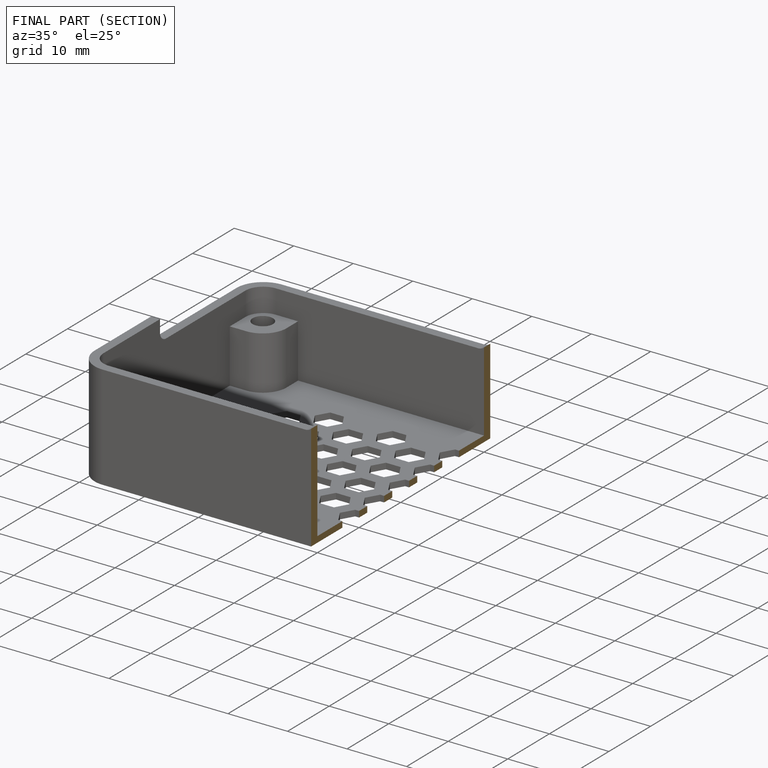
[diagram: finished part — half-section view (interior)]
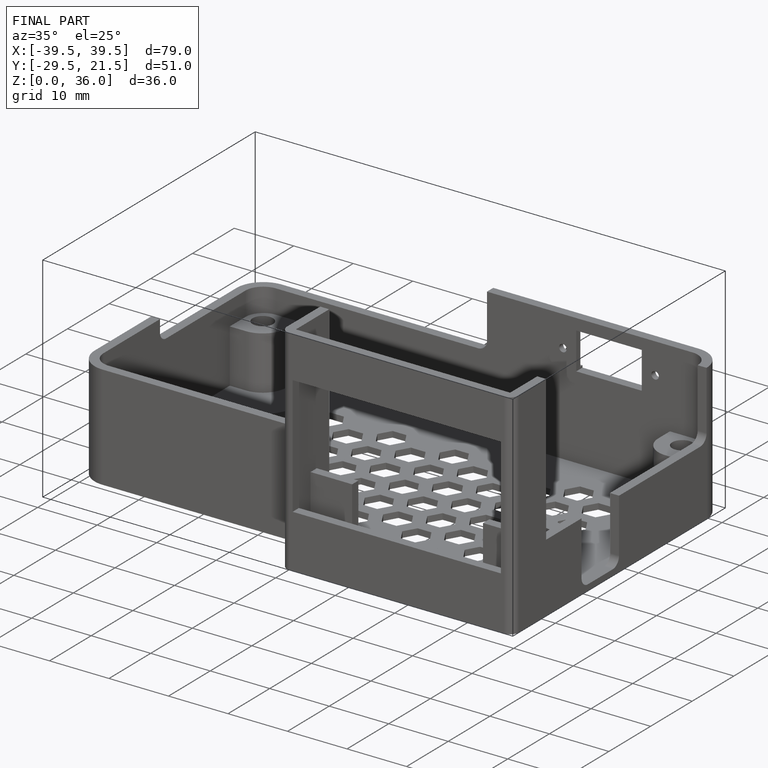
[diagram: finished part — iso view with bounding-box wireframe]
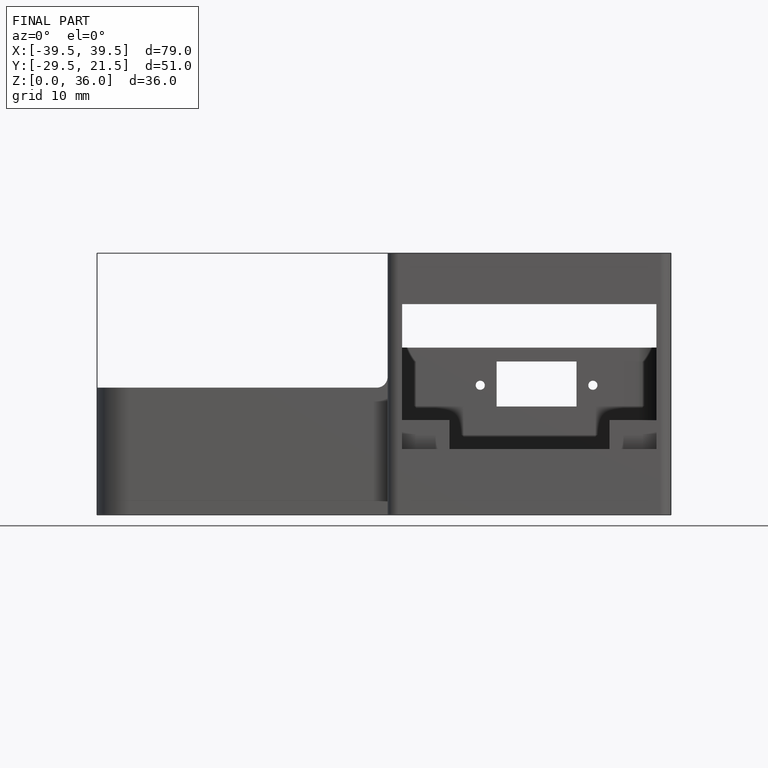
[diagram: finished part — front view with bounding-box wireframe]
